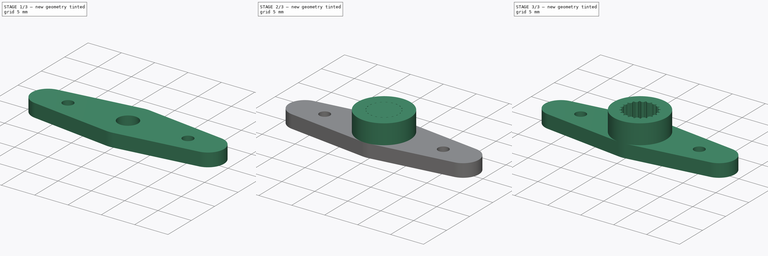
[diagram: build sequence overview — one tinted view per stage of 3, left to right]
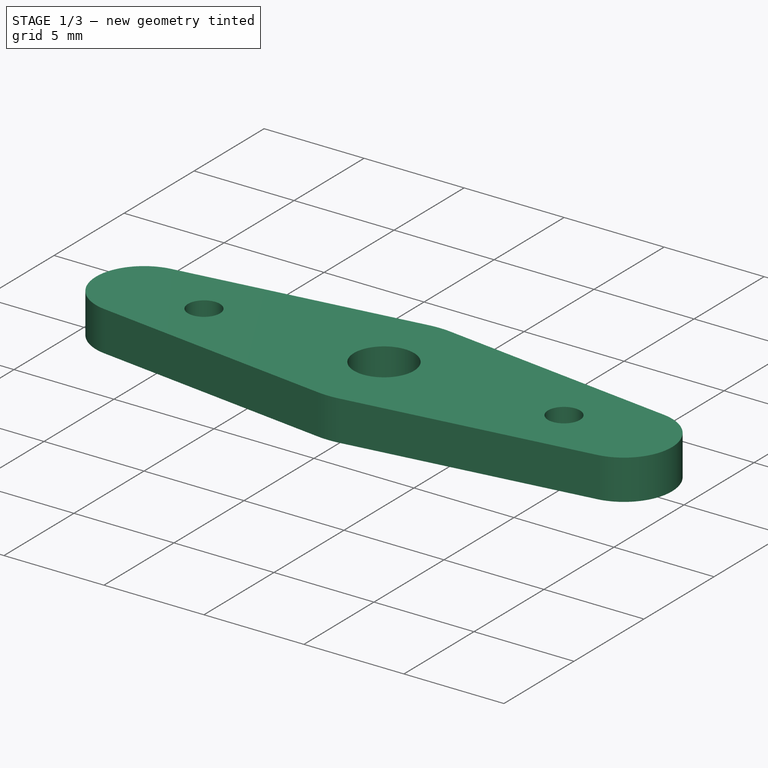
[diagram: stage 1 of 3 — iso view after this stage's code; geometry added in this stage tinted green]
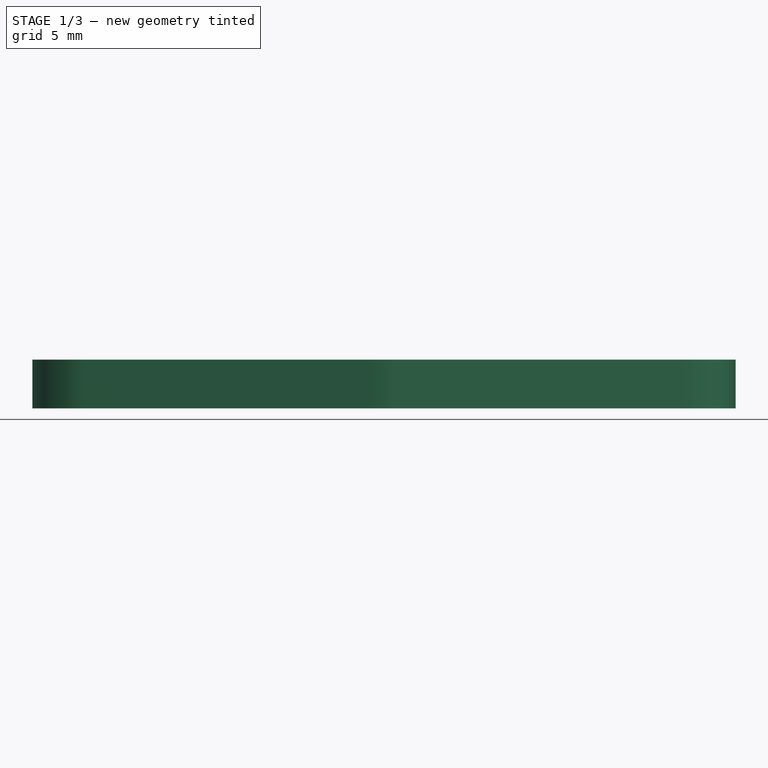
[diagram: stage 1 of 3 — front view after this stage's code; geometry added in this stage tinted green]
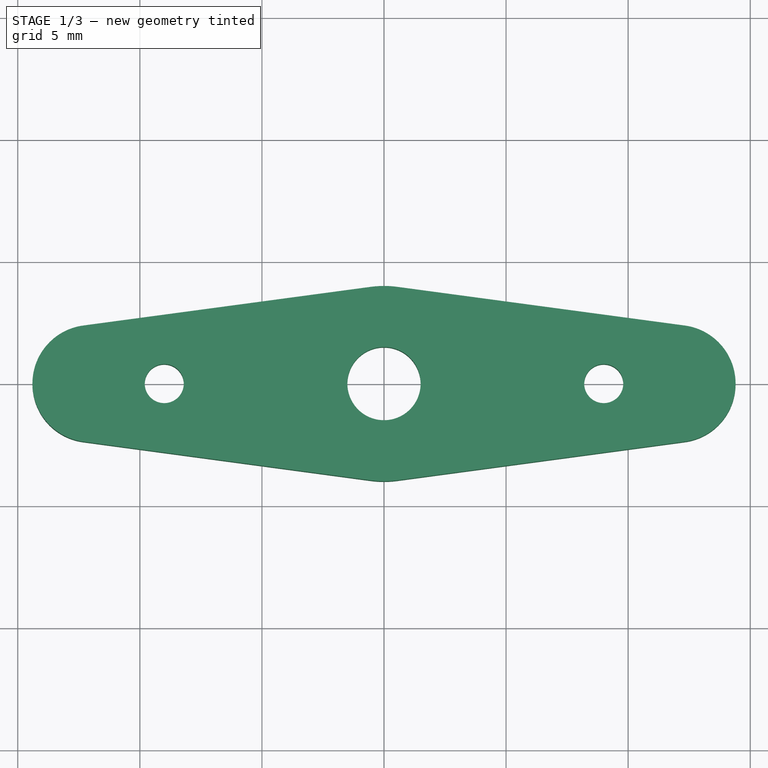
[diagram: stage 1 of 3 — top view after this stage's code; geometry added in this stage tinted green]
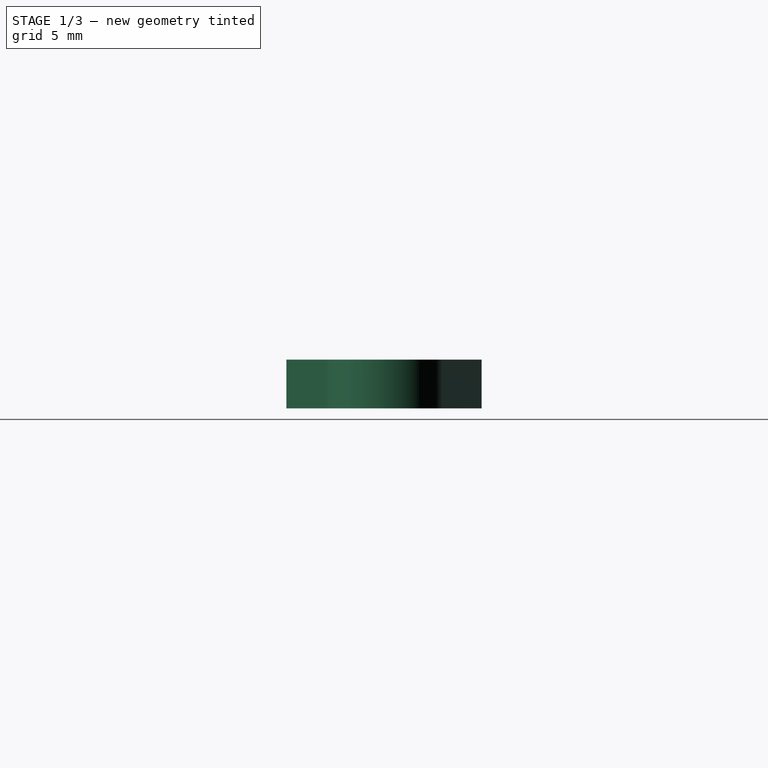
[diagram: stage 1 of 3 — right view after this stage's code; geometry added in this stage tinted green]
FCSTD DOCUMENT  (FreeCAD 0.16R6706 (Git))
Label: SG90_Dual_HornR2.3
License: All rights reserved
LicenseURL: http://en.wikipedia.org/wiki/All_rights_reserved
objects: Sketcher::SketchObject×3, PartDesign::Pad×3, Part::Part2DObjectPython×1, Part::Cut×1, PartDesign::Pocket×1, Part::MultiFuse×1
note: 14 computed .brp shape members not serialized (recipe doc carries the construction recipe); baked Part::Feature solids carry a one-line shape summary decoded from their .brp

FEATURE [Sketcher::SketchObject] Sketch  label="Axis"
  Placement = pos=(0,0,2) rot=(0,0,1;0rad)
  sketch-geometry (2):
    g0: Circle CenterX=0 CenterY=0 CenterZ=0 NormalX=0 NormalY=0 NormalZ=1 Radius=2.3
    g1: Circle CenterX=0 CenterY=0 CenterZ=0 NormalX=0 NormalY=0 NormalZ=1 Radius=4
  constraints (4):
    c: Coincident(g0,g-1)
    c: Radius(g0) = 2.3
    c: Coincident(g1,g-1)
    c: Radius(g1) = 4
FEATURE [Sketcher::SketchObject] Sketch001  label="sHorn"
  sketch-geometry (11):
    g0: Circle [constr] CenterX=0 CenterY=0 CenterZ=0 NormalX=0 NormalY=0 NormalZ=1 Radius=4
    g1: Circle [constr] CenterX=12 CenterY=0 CenterZ=0 NormalX=0 NormalY=0 NormalZ=1 Radius=2.4
    g2: LineSegment StartX=0.533333 StartY=3.96428 StartZ=0 EndX=12.32 EndY=2.37857 EndZ=0
    g3: LineSegment StartX=0.533333 StartY=-3.96428 StartZ=0 EndX=12.32 EndY=-2.37857 EndZ=0
    g4: ArcOfCircle CenterX=12 CenterY=0 CenterZ=0 NormalX=0 NormalY=0 NormalZ=1 Radius=2.4 StartAngle=4.84612 EndAngle=7.72025
    g5: Circle [constr] CenterX=-12 CenterY=0 CenterZ=0 NormalX=0 NormalY=0 NormalZ=1 Radius=2.4
    g6: LineSegment StartX=-12.32 StartY=2.37857 StartZ=0 EndX=-0.533333 EndY=3.96428 EndZ=0
    g7: LineSegment StartX=-12.32 StartY=-2.37857 StartZ=0 EndX=-0.533333 EndY=-3.96428 EndZ=0
    g8: ArcOfCircle CenterX=-12 CenterY=0 CenterZ=0 NormalX=0 NormalY=0 NormalZ=1 Radius=2.4 StartAngle=1.70453 EndAngle=4.57866
    g9: ArcOfCircle CenterX=0 CenterY=0 CenterZ=0 NormalX=0 NormalY=0 NormalZ=1 Radius=4 StartAngle=1.43706 EndAngle=1.70453
    g10: ArcOfCircle CenterX=0 CenterY=0 CenterZ=0 NormalX=0 NormalY=0 NormalZ=1 Radius=4 StartAngle=4.57866 EndAngle=4.84612
  constraints (29):
    c: Coincident(g0,g-1)
    c: Radius(g0) = 4
    c: PointOnObject(g1,g-1)
    c: Radius(g1) = 2.4
    c: DistanceX(g-1,g1) = 12
    c: PointOnObject(g2,g1)
    c: Tangent(g2,g1,g2) = 1.5708
    c: Tangent(g2,g0) = 1.5708
    c: Tangent(g3,g1) = -1.5708
    c: Tangent(g3,g0) = -1.5708
    c: Coincident(g4,g1)
    c: Coincident(g4,g2)
    c: Coincident(g4,g3)
    c: Equal(g5,g1)
    c: DistanceX(g5,g-1) = 12
    c: PointOnObject(g5,g-1)
    c: Tangent(g7,g0) = -1.5708
    c: Tangent(g7,g5) = -1.5708
    c: Tangent(g6,g5) = 1.5708
    c: Tangent(g6,g0) = 1.5708
    c: Coincident(g8,g5)
    c: Coincident(g8,g7)
    c: Coincident(g8,g6)
    c: Coincident(g9,g-1)
    c: Coincident(g10,g-1)
    c: Coincident(g10,g3)
    c: Coincident(g10,g7)
    c: Coincident(g9,g2)
    c: Coincident(g9,g6)
FEATURE [PartDesign::Pad] Pad  label="Horn Arm"
  Length = 2
  Length2 = 100
  Sketch = -> Sketch001
  Type = 0
FEATURE [Sketcher::SketchObject] Sketch002
  Placement = pos=(0,0,2) rot=(0,0,1;0rad)
  Support = -> Pad [Face10]
  sketch-geometry (3):
    g0: Circle CenterX=0 CenterY=0 CenterZ=0 NormalX=0 NormalY=0 NormalZ=1 Radius=1.5
    g1: Circle CenterX=9 CenterY=0 CenterZ=0 NormalX=0 NormalY=0 NormalZ=1 Radius=0.8
    g2: Circle CenterX=-9 CenterY=0 CenterZ=0 NormalX=0 NormalY=0 NormalZ=1 Radius=0.8
  constraints (5):
    c: Coincident(g0,g-1)
    c: Radius(g0) = 1.5
    c: Symmetric(g2,g1,g-2)
    c: DistanceX(g-1,g1) = 9
    c: PointOnObject(g1,g-1)
FEATURE [PartDesign::Pocket] Pocket  label="Horn Arm w Hole"
  Length = 4
  Sketch = -> Sketch002
  Type = 0
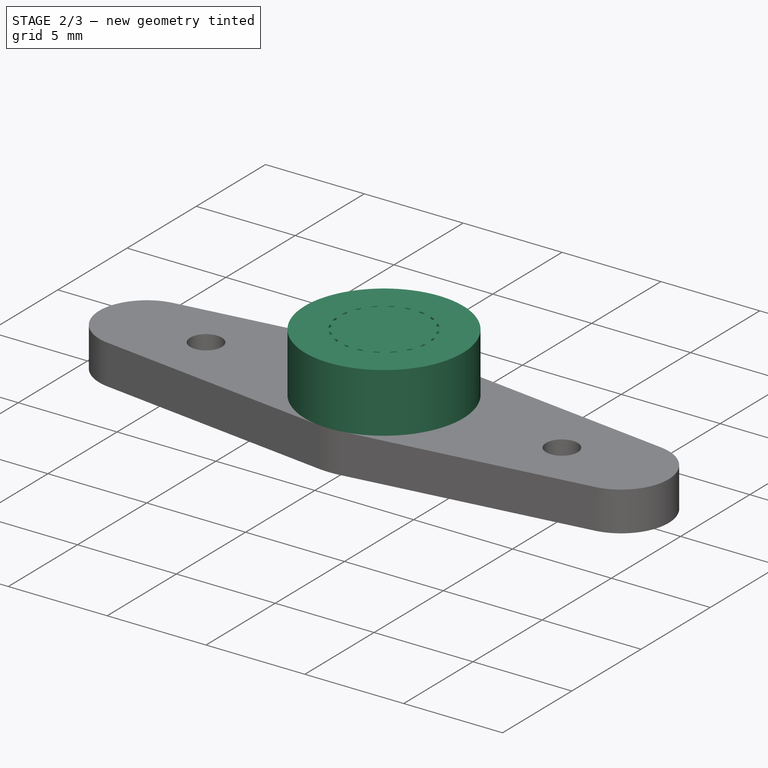
[diagram: stage 2 of 3 — iso view after this stage's code; geometry added in this stage tinted green]
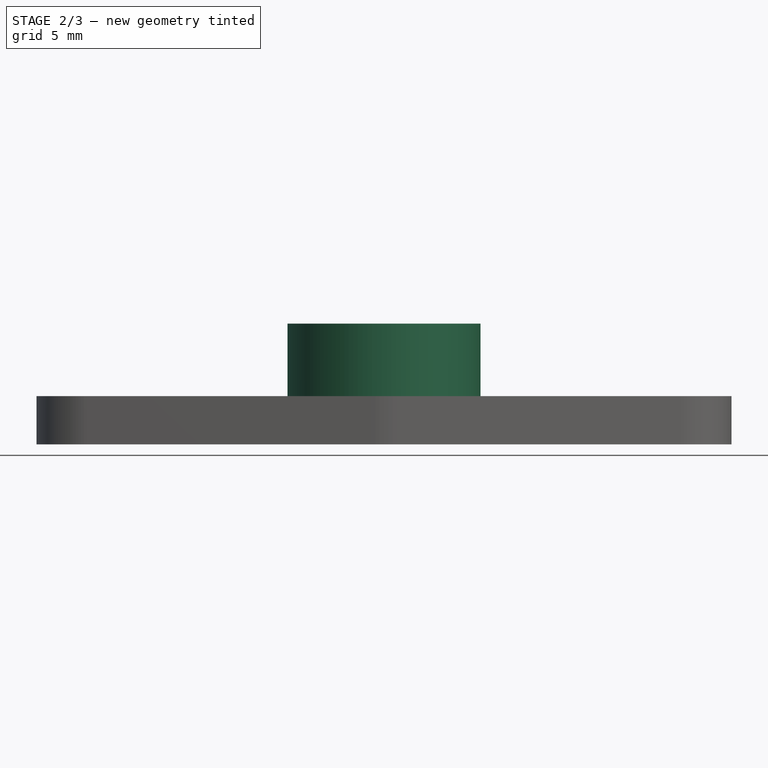
[diagram: stage 2 of 3 — front view after this stage's code; geometry added in this stage tinted green]
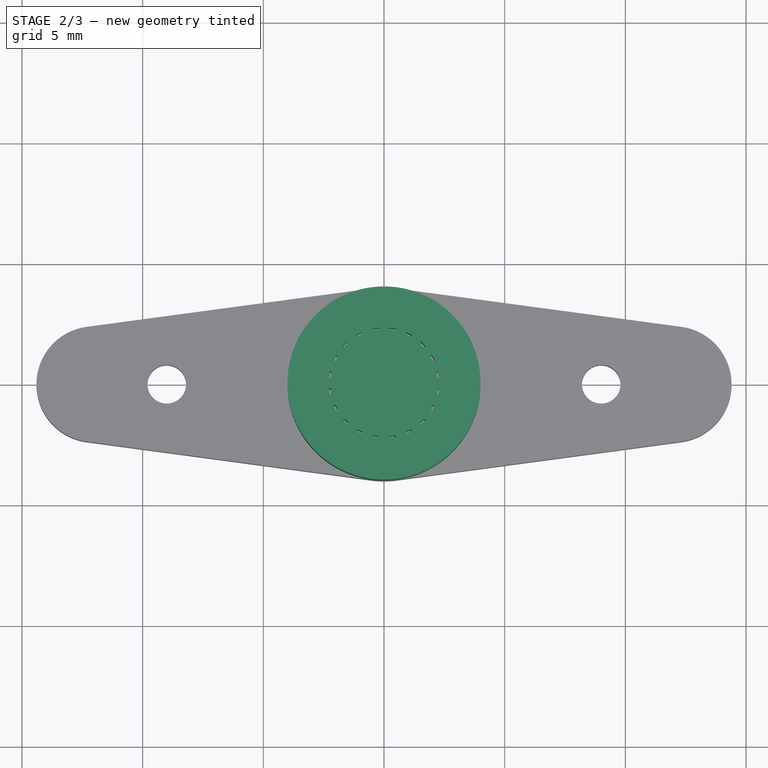
[diagram: stage 2 of 3 — top view after this stage's code; geometry added in this stage tinted green]
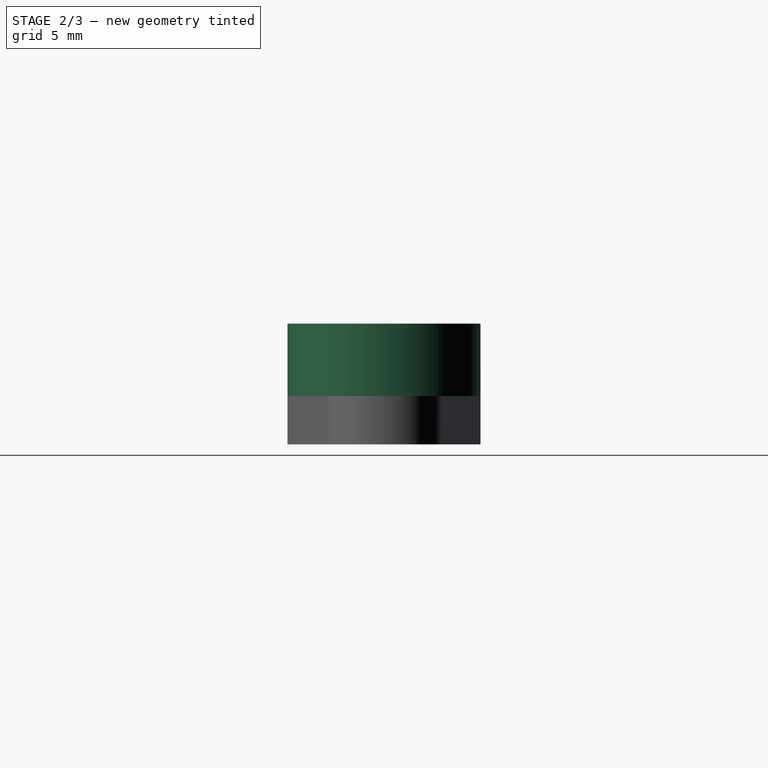
[diagram: stage 2 of 3 — right view after this stage's code; geometry added in this stage tinted green]
FEATURE [PartDesign::Pad] Pad001  label="Horn Ring Holder"
  Length = 3
  Length2 = 100
  Placement = pos=(0,0,2) rot=(0,0,1;0rad)
  Sketch = -> Sketch
  Type = 0
FEATURE [Part::Part2DObjectPython] InvoluteGear  # Draft 2D object (typed FeaturePython)
  ExternalGear = false
  HighPrecision = false
  Modules = 0.235
  NumberOfTeeth = 20
  Placement = pos=(0,0,2) rot=(0,0,1;0.15708rad)
  PressureAngle = 32
FEATURE [PartDesign::Pad] Pad002  label="Inner Gear"
  Length = 3
  Length2 = 100
  Placement = pos=(0,0,2) rot=(0,0,1;0.15708rad)
  Sketch = -> InvoluteGear
  Type = 0
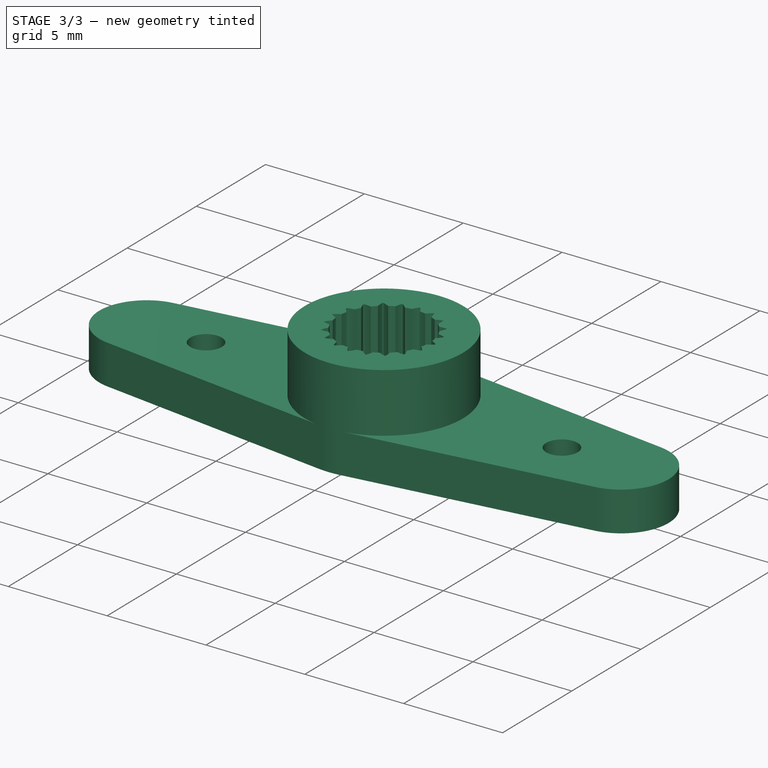
[diagram: stage 3 of 3 — iso view after this stage's code; geometry added in this stage tinted green]
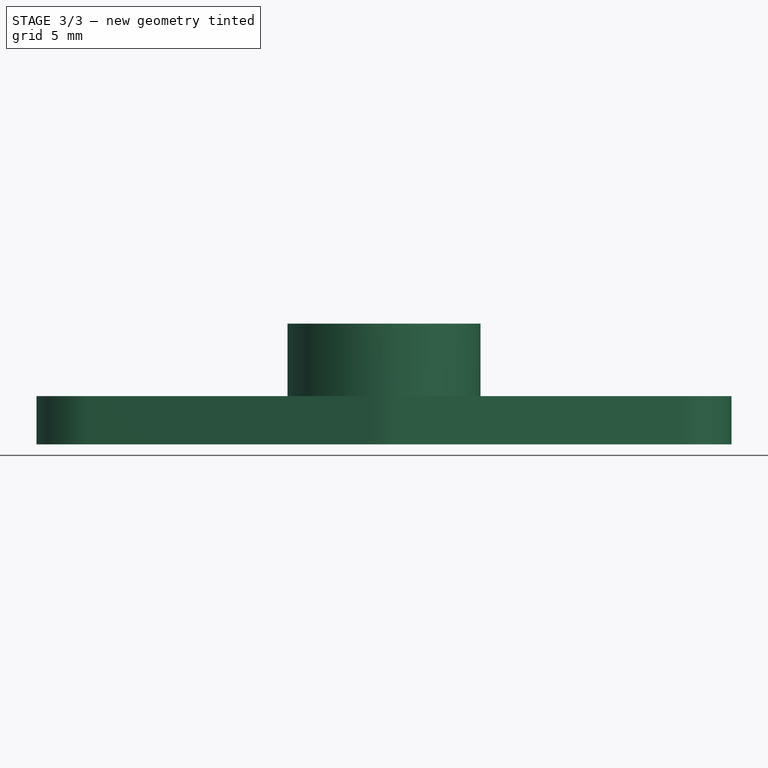
[diagram: stage 3 of 3 — front view after this stage's code; geometry added in this stage tinted green]
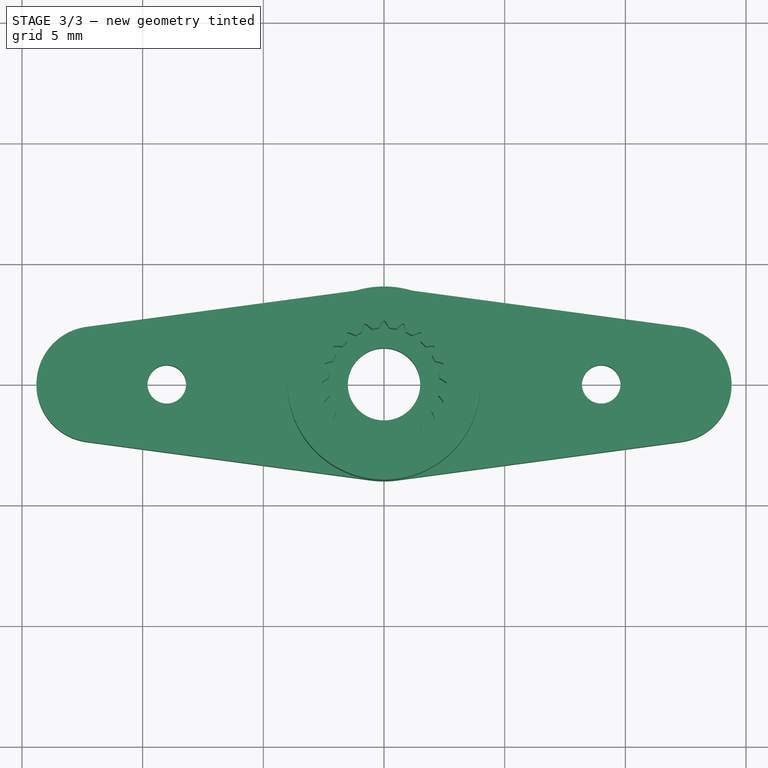
[diagram: stage 3 of 3 — top view after this stage's code; geometry added in this stage tinted green]
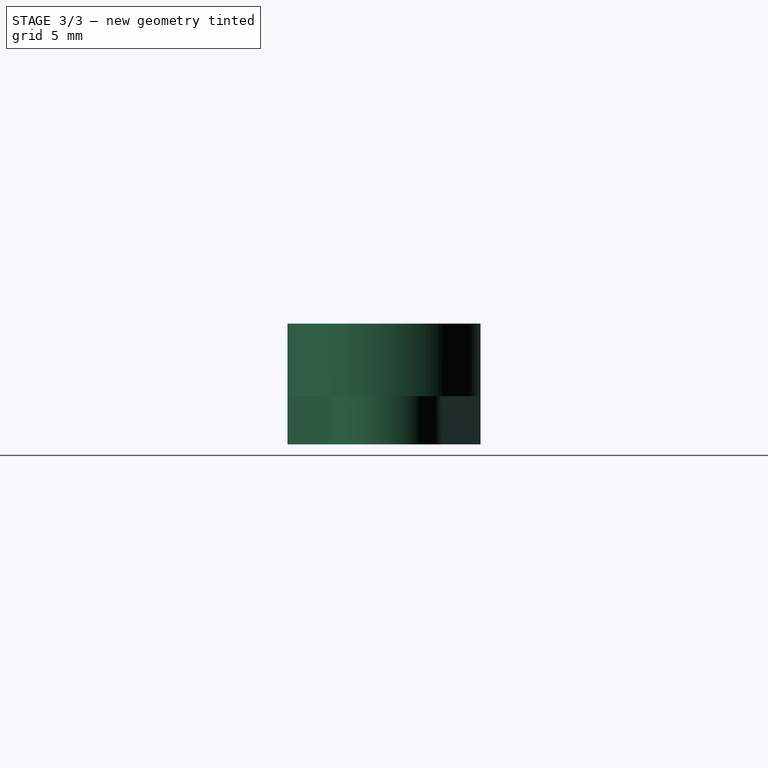
[diagram: stage 3 of 3 — right view after this stage's code; geometry added in this stage tinted green]
FEATURE [Part::Cut] Cut  label="Ring Holder w Gear"
  Base = -> Pad001
  Tool = -> Pad002
FEATURE [Part::MultiFuse] Fusion
  Shapes = -> [Cut,Pocket]
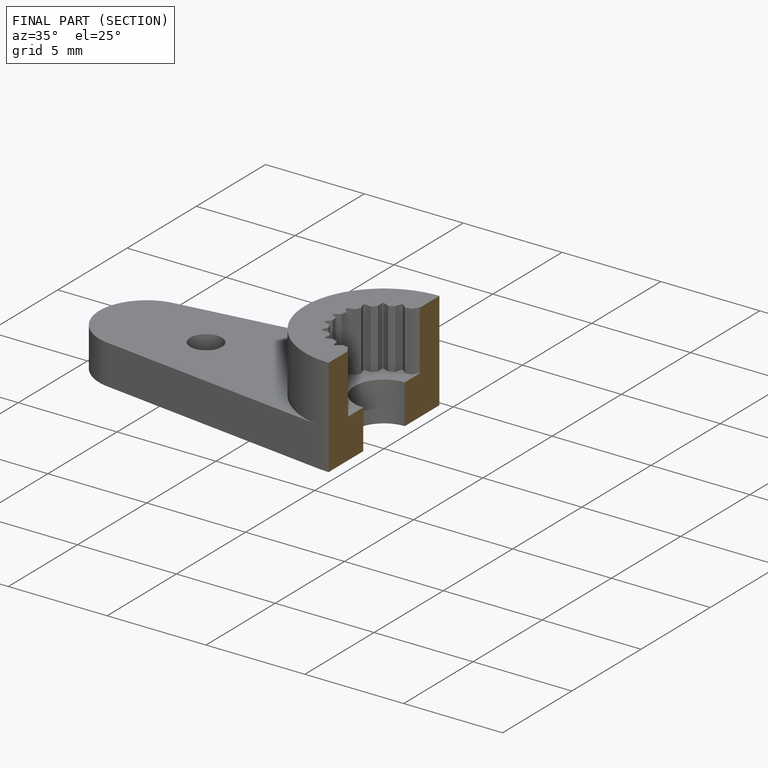
[diagram: finished part — half-section view (interior)]
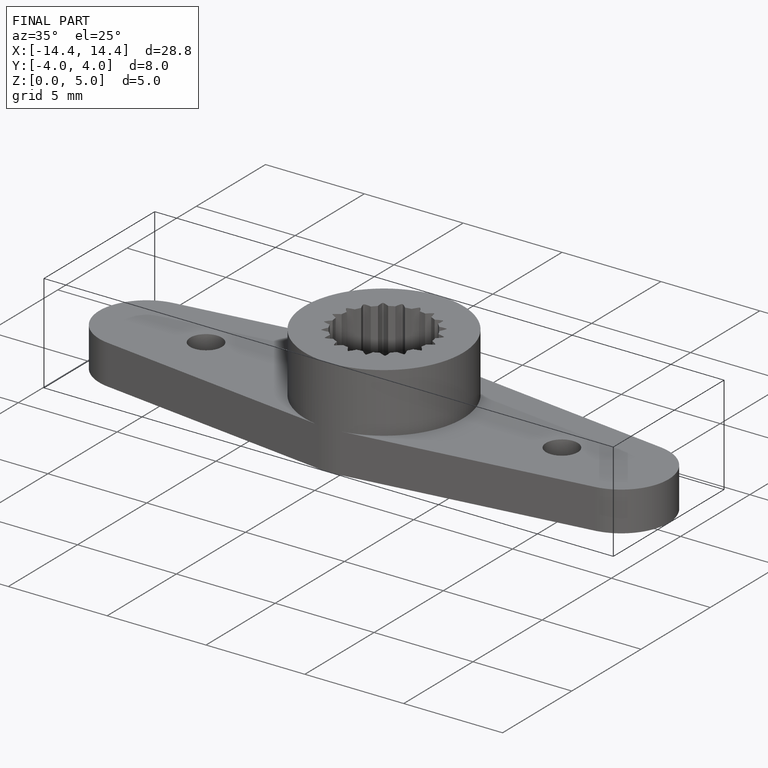
[diagram: finished part — iso view with bounding-box wireframe]
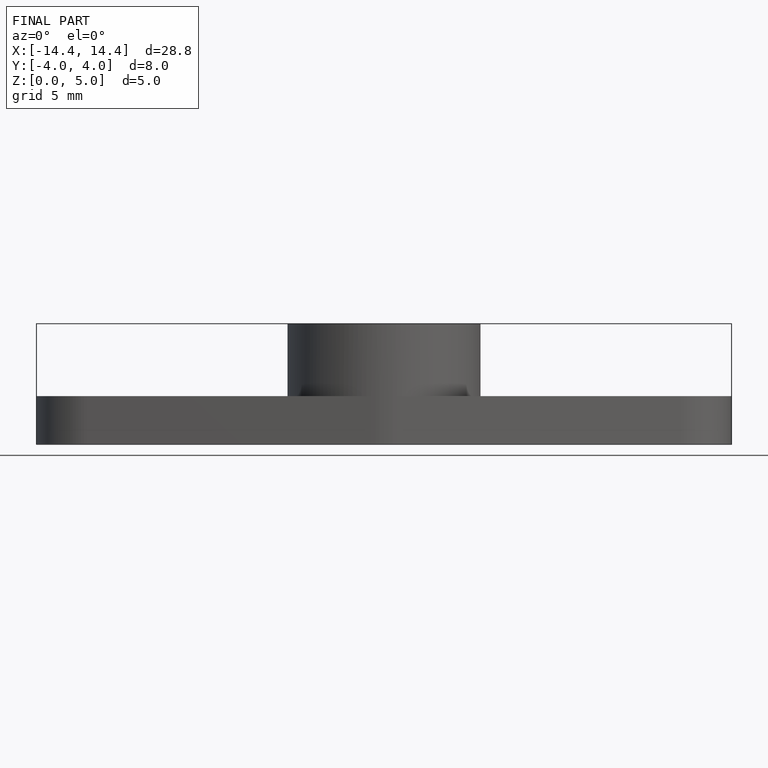
[diagram: finished part — front view with bounding-box wireframe]
